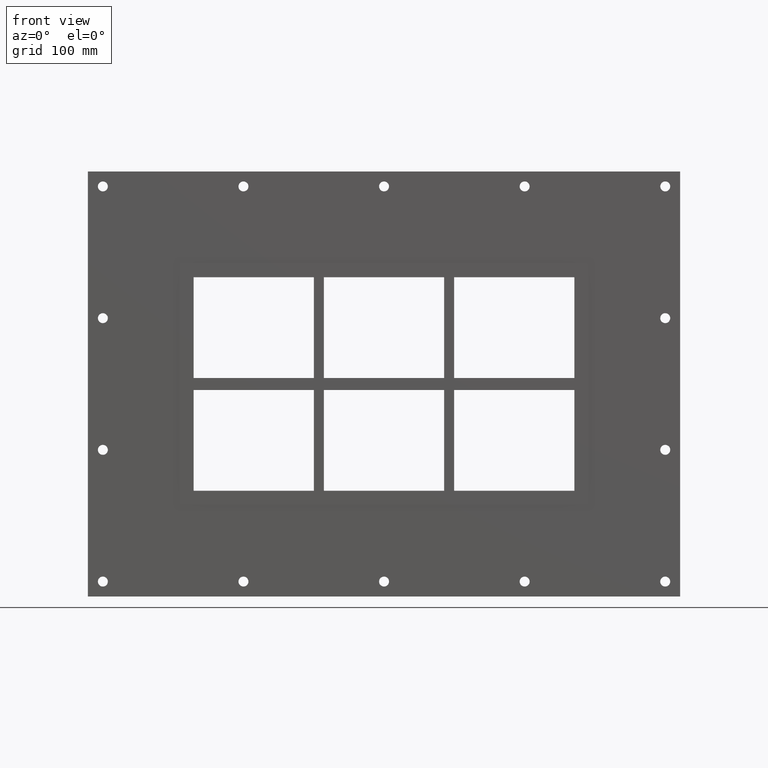
[diagram: clean part render]
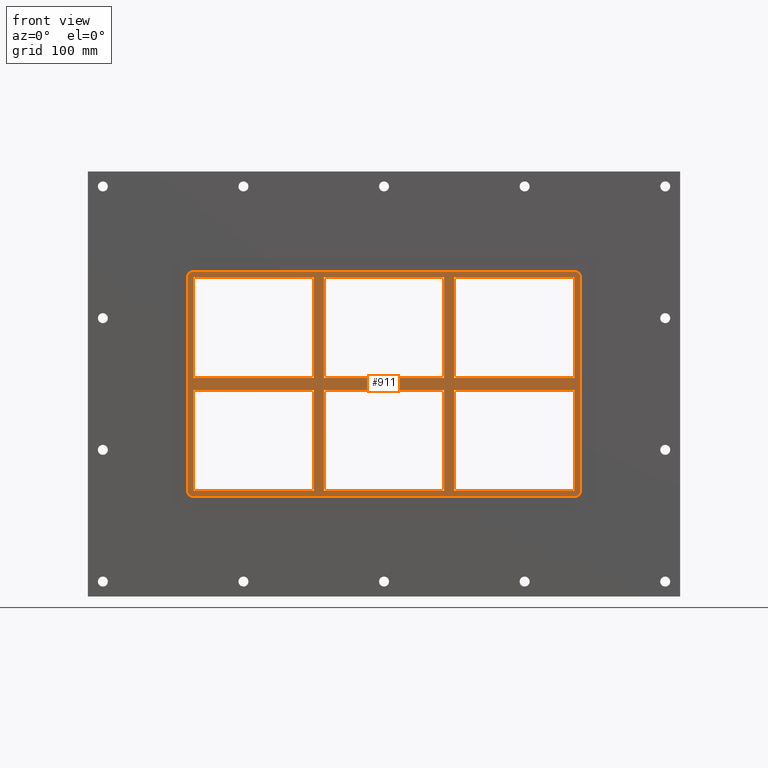
[diagram: same view with one face highlighted and labeled with its STEP entity id]
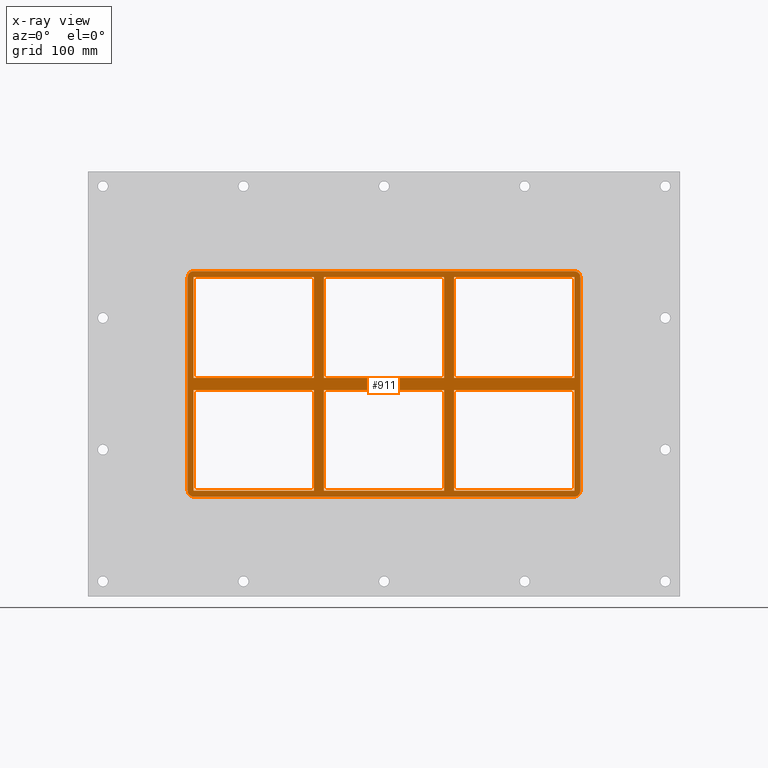
[diagram: x-ray of the same camera — body ghosted, the highlighted face saturated]
A machine part, front view. The second image highlights one B-rep face of the part: STEP entity #911.
The next image is the same camera in x-ray: the body ghosted, the highlighted face saturated — about 0% of this face is hidden behind the body in this view.
In plain terms, the highlighted planar face has unit normal (0, 1, 0).
Its self-contained STEP definition (entity closure, byte-faithful):
#465=CARTESIAN_POINT('',(60.249999999998643,-3.0,5.999999999999943));
#466=VERTEX_POINT('',#465);
#475=CARTESIAN_POINT('',(60.249999999998622,-3.0,107.0));
#476=VERTEX_POINT('',#475);
#477=CARTESIAN_POINT('',(60.249999999998643,-3.0,5.999999999999943));
#478=DIRECTION('',(0.0,0.0,1.0));
#479=VECTOR('',#478,101.00000000000006);
#480=LINE('',#477,#479);
#481=EDGE_CURVE('',#466,#476,#480,.T.);
#507=CARTESIAN_POINT('',(60.249999999998643,-3.0,-6.000000000009322));
#508=VERTEX_POINT('',#507);
#523=CARTESIAN_POINT('',(60.249999999998671,-3.0,-107.0));
#524=VERTEX_POINT('',#523);
#531=CARTESIAN_POINT('',(60.249999999998671,-3.0,-107.0));
#532=DIRECTION('',(0.0,0.0,1.0));
#533=VECTOR('',#532,100.99999999999068);
#534=LINE('',#531,#533);
#535=EDGE_CURVE('',#524,#508,#534,.T.);
#547=CARTESIAN_POINT('',(70.250000000003638,-3.0,5.999999999999943));
#548=VERTEX_POINT('',#547);
#563=CARTESIAN_POINT('',(70.250000000003638,-3.0,107.0));
#564=VERTEX_POINT('',#563);
#571=CARTESIAN_POINT('',(70.250000000003638,-3.0,107.0));
#572=DIRECTION('',(0.0,0.0,-1.0));
#573=VECTOR('',#572,101.00000000000006);
#574=LINE('',#571,#573);
#575=EDGE_CURVE('',#564,#548,#574,.T.);
#585=CARTESIAN_POINT('',(70.250000000003638,-3.0,-6.000000000009322));
#586=VERTEX_POINT('',#585);
#595=CARTESIAN_POINT('',(70.250000000003638,-3.0,-106.99999999998425));
#596=VERTEX_POINT('',#595);
#597=CARTESIAN_POINT('',(70.250000000003638,-3.0,-6.000000000009322));
#598=DIRECTION('',(0.0,0.0,-1.0));
#599=VECTOR('',#598,100.99999999997493);
#600=LINE('',#597,#599);
#601=EDGE_CURVE('',#586,#596,#600,.T.);
#634=CARTESIAN_POINT('',(-60.249999999996362,-3.0,-106.99999999998425));
#635=VERTEX_POINT('',#634);
#642=CARTESIAN_POINT('',(60.249999999998678,-3.0,-107.0));
#643=DIRECTION('',(-1.0,0.0,0.0));
#644=VECTOR('',#643,120.49999999999504);
#645=LINE('',#642,#644);
#646=EDGE_CURVE('',#524,#635,#645,.T.);
#657=CARTESIAN_POINT('',(190.75000000000011,-3.0,-107.0));
#658=VERTEX_POINT('',#657);
#659=CARTESIAN_POINT('',(190.75000000000011,-3.0,-107.0));
#660=DIRECTION('',(-1.0,0.0,0.0));
#661=VECTOR('',#660,120.49999999999646);
#662=LINE('',#659,#661);
#663=EDGE_CURVE('',#658,#596,#662,.T.);
#682=CARTESIAN_POINT('',(0.0,-3.0,0.0));
#683=DIRECTION('',(0.0,1.0,0.0));
#684=DIRECTION('',(0.0,0.0,1.0));
#685=AXIS2_PLACEMENT_3D('',#682,#683,#684);
#686=PLANE('',#685);
#687=CARTESIAN_POINT('',(196.75000000000006,-3.0,-107.0));
#688=VERTEX_POINT('',#687);
#689=CARTESIAN_POINT('',(190.75000000000003,-3.0,-113.0));
#690=VERTEX_POINT('',#689);
#691=CARTESIAN_POINT('',(190.75000000000003,-3.0,-107.0));
#692=DIRECTION('',(0.0,1.0,0.0));
#693=DIRECTION('',(0.707106781186548,0.0,-0.707106781186548));
#694=AXIS2_PLACEMENT_3D('',#691,#692,#693);
#695=CIRCLE('',#694,6.000000000000002);
#696=EDGE_CURVE('',#688,#690,#695,.T.);
#697=ORIENTED_EDGE('',*,*,#696,.F.);
#698=CARTESIAN_POINT('',(196.75000000000006,-3.0,107.00000000000001));
#699=VERTEX_POINT('',#698);
#700=CARTESIAN_POINT('',(196.75000000000006,-3.0,-107.0));
#701=DIRECTION('',(0.0,0.0,1.0));
#702=VECTOR('',#701,214.0);
#703=LINE('',#700,#702);
#704=EDGE_CURVE('',#688,#699,#703,.T.);
#705=ORIENTED_EDGE('',*,*,#704,.T.);
#706=CARTESIAN_POINT('',(190.75000000000003,-3.0,113.0));
#707=VERTEX_POINT('',#706);
#708=CARTESIAN_POINT('',(190.75000000000003,-3.0,107.00000000000001));
#709=DIRECTION('',(0.0,1.0,0.0));
#710=DIRECTION('',(0.70710678118655,0.0,0.707106781186545));
#711=AXIS2_PLACEMENT_3D('',#708,#709,#710);
#712=CIRCLE('',#711,6.000000000000001);
#713=EDGE_CURVE('',#707,#699,#712,.T.);
#714=ORIENTED_EDGE('',*,*,#713,.F.);
#715=CARTESIAN_POINT('',(-190.75000000000003,-3.0,113.0));
#716=VERTEX_POINT('',#715);
#717=CARTESIAN_POINT('',(190.75,-3.0,113.0));
#718=DIRECTION('',(-1.0,0.0,0.0));
#719=VECTOR('',#718,381.50000000000006);
#720=LINE('',#717,#719);
#721=EDGE_CURVE('',#707,#716,#720,.T.);
#722=ORIENTED_EDGE('',*,*,#721,.T.);
#723=CARTESIAN_POINT('',(-196.75000000000006,-3.0,107.0));
#724=VERTEX_POINT('',#723);
#725=CARTESIAN_POINT('',(-190.75000000000003,-3.0,107.0));
#726=DIRECTION('',(0.0,1.0,0.0));
#727=DIRECTION('',(-0.707106781186548,0.0,0.707106781186548));
#728=AXIS2_PLACEMENT_3D('',#725,#726,#727);
#729=CIRCLE('',#728,6.000000000000002);
#730=EDGE_CURVE('',#724,#716,#729,.T.);
#731=ORIENTED_EDGE('',*,*,#730,.F.);
#732=CARTESIAN_POINT('',(-196.75000000000006,-3.0,-107.0));
#733=VERTEX_POINT('',#732);
#734=CARTESIAN_POINT('',(-196.75000000000006,-3.0,107.0));
#735=DIRECTION('',(0.0,0.0,-1.0));
#736=VECTOR('',#735,214.0);
#737=LINE('',#734,#736);
#738=EDGE_CURVE('',#724,#733,#737,.T.);
#739=ORIENTED_EDGE('',*,*,#738,.T.);
#740=CARTESIAN_POINT('',(-190.75000000000003,-3.0,-113.0));
#741=VERTEX_POINT('',#740);
#742=CARTESIAN_POINT('',(-190.75000000000003,-3.0,-107.0));
#743=DIRECTION('',(0.0,1.0,0.0));
#744=DIRECTION('',(-0.707106781186548,0.0,-0.707106781186548));
#745=AXIS2_PLACEMENT_3D('',#742,#743,#744);
#746=CIRCLE('',#745,6.000000000000002);
#747=EDGE_CURVE('',#741,#733,#746,.T.);
#748=ORIENTED_EDGE('',*,*,#747,.F.);
#749=CARTESIAN_POINT('',(-190.75,-3.0,-113.0));
#750=DIRECTION('',(1.0,0.0,0.0));
#751=VECTOR('',#750,381.50000000000006);
#752=LINE('',#749,#751);
#753=EDGE_CURVE('',#741,#690,#752,.T.);
#754=ORIENTED_EDGE('',*,*,#753,.T.);
#755=EDGE_LOOP('',(#697,#705,#714,#722,#731,#739,#748,#754));
#756=FACE_OUTER_BOUND('',#755,.T.);
#757=ORIENTED_EDGE('',*,*,#646,.T.);
#758=CARTESIAN_POINT('',(-60.249999999996362,-3.0,-6.000000000009322));
#759=VERTEX_POINT('',#758);
#760=CARTESIAN_POINT('',(-60.249999999996362,-3.0,-6.000000000009322));
#761=DIRECTION('',(0.0,0.0,-1.0));
#762=VECTOR('',#761,100.99999999997493);
#763=LINE('',#760,#762);
#764=EDGE_CURVE('',#759,#635,#763,.T.);
#765=ORIENTED_EDGE('',*,*,#764,.F.);
#766=CARTESIAN_POINT('',(60.249999999998636,-3.0,-6.000000000009322));
#767=DIRECTION('',(-1.0,0.0,0.0));
#768=VECTOR('',#767,120.499999999995);
#769=LINE('',#766,#768);
#770=EDGE_CURVE('',#508,#759,#769,.T.);
#771=ORIENTED_EDGE('',*,*,#770,.F.);
#772=ORIENTED_EDGE('',*,*,#535,.F.);
#773=EDGE_LOOP('',(#757,#765,#771,#772));
#774=FACE_BOUND('',#773,.T.);
#775=CARTESIAN_POINT('',(-60.249999999996362,-3.0,5.999999999999943));
#776=VERTEX_POINT('',#775);
#777=CARTESIAN_POINT('',(-60.249999999996362,-3.0,5.999999999999943));
#778=DIRECTION('',(1.0,0.0,0.0));
#779=VECTOR('',#778,120.499999999995);
#780=LINE('',#777,#779);
#781=EDGE_CURVE('',#776,#466,#780,.T.);
#782=ORIENTED_EDGE('',*,*,#781,.F.);
#783=CARTESIAN_POINT('',(-60.249999999996362,-3.0,107.0));
#784=VERTEX_POINT('',#783);
#785=CARTESIAN_POINT('',(-60.249999999996362,-3.0,107.0));
#786=DIRECTION('',(0.0,0.0,-1.0));
#787=VECTOR('',#786,101.00000000000006);
#788=LINE('',#785,#787);
#789=EDGE_CURVE('',#784,#776,#788,.T.);
#790=ORIENTED_EDGE('',*,*,#789,.F.);
#791=CARTESIAN_POINT('',(-60.249999999996362,-3.0,107.0));
#792=DIRECTION('',(1.0,0.0,0.0));
#793=VECTOR('',#792,120.49999999999498);
#794=LINE('',#791,#793);
#795=EDGE_CURVE('',#784,#476,#794,.T.);
#796=ORIENTED_EDGE('',*,*,#795,.T.);
#797=ORIENTED_EDGE('',*,*,#481,.F.);
#798=EDGE_LOOP('',(#782,#790,#796,#797));
#799=FACE_BOUND('',#798,.T.);
#800=ORIENTED_EDGE('',*,*,#575,.F.);
#801=CARTESIAN_POINT('',(190.75000000000011,-3.0,107.0));
#802=VERTEX_POINT('',#801);
#803=CARTESIAN_POINT('',(70.250000000003652,-3.0,107.0));
#804=DIRECTION('',(1.0,0.0,0.0));
#805=VECTOR('',#804,120.49999999999646);
#806=LINE('',#803,#805);
#807=EDGE_CURVE('',#564,#802,#806,.T.);
#808=ORIENTED_EDGE('',*,*,#807,.T.);
#809=CARTESIAN_POINT('',(190.74999999999991,-3.0,5.999999999999943));
#810=VERTEX_POINT('',#809);
#811=CARTESIAN_POINT('',(190.75000000000011,-3.0,107.0));
#812=DIRECTION('',(0.0,0.0,-1.0));
#813=VECTOR('',#812,101.00000000000006);
#814=LINE('',#811,#813);
#815=EDGE_CURVE('',#802,#810,#814,.T.);
#816=ORIENTED_EDGE('',*,*,#815,.T.);
#817=CARTESIAN_POINT('',(70.250000000003666,-3.0,5.999999999999943));
#818=DIRECTION('',(1.0,0.0,0.0));
#819=VECTOR('',#818,120.49999999999625);
#820=LINE('',#817,#819);
#821=EDGE_CURVE('',#548,#810,#820,.T.);
#822=ORIENTED_EDGE('',*,*,#821,.F.);
#823=EDGE_LOOP('',(#800,#808,#816,#822));
#824=FACE_BOUND('',#823,.T.);
#825=ORIENTED_EDGE('',*,*,#601,.F.);
#826=CARTESIAN_POINT('',(190.74999999999818,-3.0,-6.000000000009322));
#827=VERTEX_POINT('',#826);
#828=CARTESIAN_POINT('',(190.74999999999818,-3.0,-6.000000000009322));
#829=DIRECTION('',(-1.0,0.0,0.0));
#830=VECTOR('',#829,120.49999999999454);
#831=LINE('',#828,#830);
#832=EDGE_CURVE('',#827,#586,#831,.T.);
#833=ORIENTED_EDGE('',*,*,#832,.F.);
#834=CARTESIAN_POINT('',(190.75000000000011,-3.0,-6.000000000009322));
#835=DIRECTION('',(0.0,0.0,-1.0));
#836=VECTOR('',#835,100.99999999999065);
#837=LINE('',#834,#836);
#838=EDGE_CURVE('',#827,#658,#837,.T.);
#839=ORIENTED_EDGE('',*,*,#838,.T.);
#840=ORIENTED_EDGE('',*,*,#663,.T.);
#841=EDGE_LOOP('',(#825,#833,#839,#840));
#842=FACE_BOUND('',#841,.T.);
#843=CARTESIAN_POINT('',(-70.250000000001364,-3.0,-6.000000000009322));
#844=VERTEX_POINT('',#843);
#845=CARTESIAN_POINT('',(-190.74999999999974,-3.0,-6.000000000009322));
#846=VERTEX_POINT('',#845);
#847=CARTESIAN_POINT('',(-70.250000000001364,-3.0,-6.000000000009322));
#848=DIRECTION('',(-1.0,0.0,0.0));
#849=VECTOR('',#848,120.49999999999841);
#850=LINE('',#847,#849);
#851=EDGE_CURVE('',#844,#846,#850,.T.);
#852=ORIENTED_EDGE('',*,*,#851,.F.);
#853=CARTESIAN_POINT('',(-70.250000000001336,-3.0,-107.0));
#854=VERTEX_POINT('',#853);
#855=CARTESIAN_POINT('',(-70.250000000001336,-3.0,-107.0));
#856=DIRECTION('',(0.0,0.0,1.0));
#857=VECTOR('',#856,100.99999999999068);
#858=LINE('',#855,#857);
#859=EDGE_CURVE('',#854,#844,#858,.T.);
#860=ORIENTED_EDGE('',*,*,#859,.F.);
#861=CARTESIAN_POINT('',(-190.75000000000003,-3.0,-107.0));
#862=VERTEX_POINT('',#861);
#863=CARTESIAN_POINT('',(-70.250000000001336,-3.0,-107.0));
#864=DIRECTION('',(-1.0,0.0,0.0));
#865=VECTOR('',#864,120.49999999999866);
#866=LINE('',#863,#865);
#867=EDGE_CURVE('',#854,#862,#866,.T.);
#868=ORIENTED_EDGE('',*,*,#867,.T.);
#869=CARTESIAN_POINT('',(-190.75000000000003,-3.0,-107.0));
#870=DIRECTION('',(0.0,0.0,1.0));
#871=VECTOR('',#870,100.99999999999068);
#872=LINE('',#869,#871);
#873=EDGE_CURVE('',#862,#846,#872,.T.);
#874=ORIENTED_EDGE('',*,*,#873,.T.);
#875=EDGE_LOOP('',(#852,#860,#868,#874));
#876=FACE_BOUND('',#875,.T.);
#877=CARTESIAN_POINT('',(-190.74999999999974,-3.0,5.999999999999943));
#878=VERTEX_POINT('',#877);
#879=CARTESIAN_POINT('',(-190.75000000000003,-3.0,107.0));
#880=VERTEX_POINT('',#879);
#881=CARTESIAN_POINT('',(-190.75000000000003,-3.0,5.999999999999943));
#882=DIRECTION('',(0.0,0.0,1.0));
#883=VECTOR('',#882,101.00000000000003);
#884=LINE('',#881,#883);
#885=EDGE_CURVE('',#878,#880,#884,.T.);
#886=ORIENTED_EDGE('',*,*,#885,.T.);
#887=CARTESIAN_POINT('',(-70.250000000001393,-3.0,107.0));
#888=VERTEX_POINT('',#887);
#889=CARTESIAN_POINT('',(-190.75000000000003,-3.0,107.0));
#890=DIRECTION('',(1.0,0.0,0.0));
#891=VECTOR('',#890,120.49999999999864);
#892=LINE('',#889,#891);
#893=EDGE_CURVE('',#880,#888,#892,.T.);
#894=ORIENTED_EDGE('',*,*,#893,.T.);
#895=CARTESIAN_POINT('',(-70.250000000001364,-3.0,5.999999999999943));
#896=VERTEX_POINT('',#895);
#897=CARTESIAN_POINT('',(-70.250000000001364,-3.0,5.999999999999943));
#898=DIRECTION('',(0.0,0.0,1.0));
#899=VECTOR('',#898,101.00000000000006);
#900=LINE('',#897,#899);
#901=EDGE_CURVE('',#896,#888,#900,.T.);
#902=ORIENTED_EDGE('',*,*,#901,.F.);
#903=CARTESIAN_POINT('',(-190.74999999999974,-3.0,5.999999999999943));
#904=DIRECTION('',(1.0,0.0,0.0));
#905=VECTOR('',#904,120.49999999999838);
#906=LINE('',#903,#905);
#907=EDGE_CURVE('',#878,#896,#906,.T.);
#908=ORIENTED_EDGE('',*,*,#907,.F.);
#909=EDGE_LOOP('',(#886,#894,#902,#908));
#910=FACE_BOUND('',#909,.T.);
#911=ADVANCED_FACE('',(#756,#774,#799,#824,#842,#876,#910),#686,.F.);